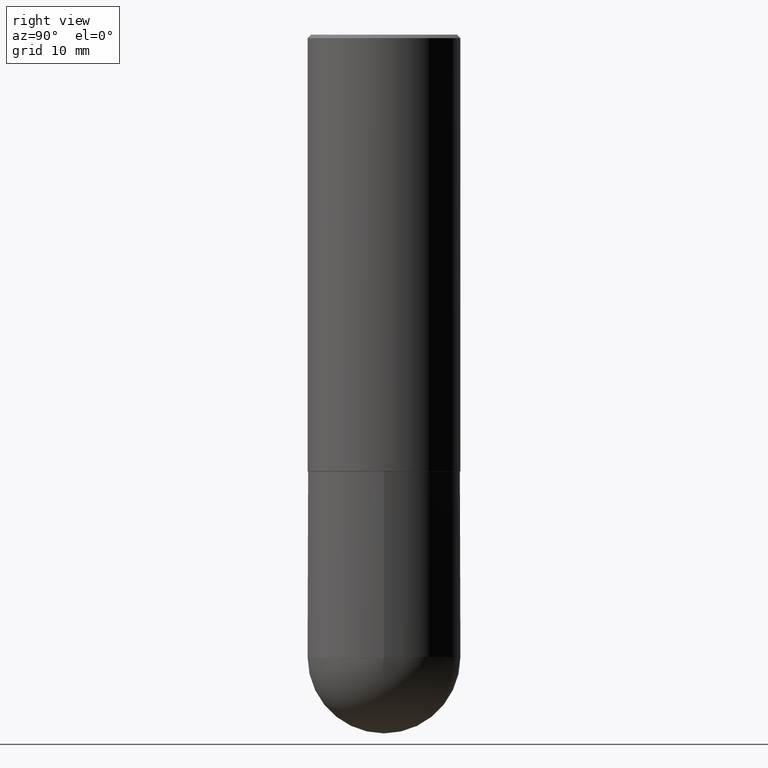
[diagram: clean part render]
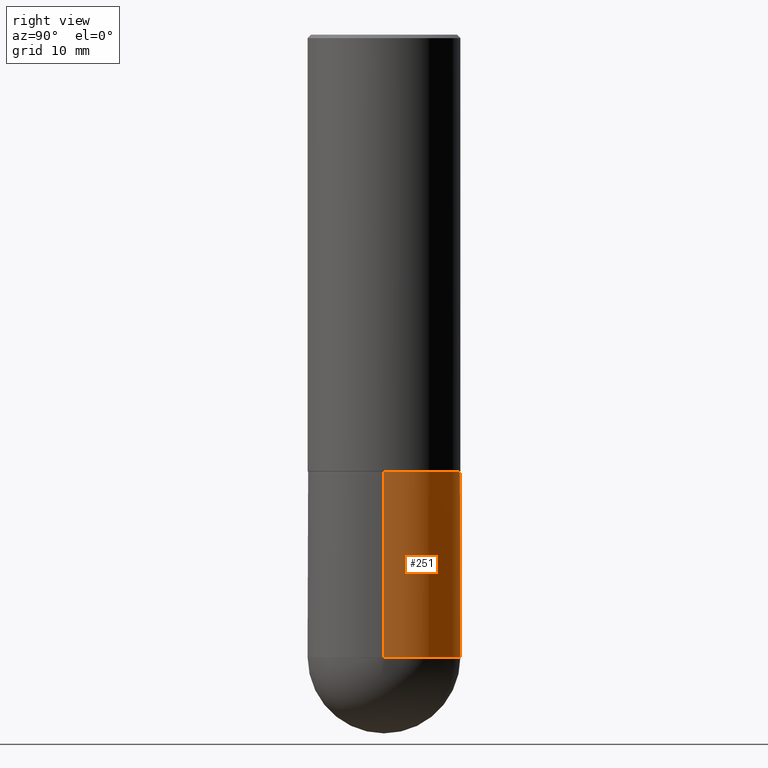
[diagram: same view with one face highlighted and labeled with its STEP entity id]
A machine part, right view. The second image highlights one B-rep face of the part: STEP entity #251.
In plain terms, the highlighted cylindrical surface (partial cylindrical patch) has radius 11.1125 mm, axis along (-0, 0, 1).
Its self-contained STEP definition (entity closure, byte-faithful):
#2 = CIRCLE ( 'NONE', #32, 0.4375000000000000000 ) ;
#16 = CARTESIAN_POINT ( 'NONE',  ( -0.4375000000000000000, -7.474928339417847141E-15, -2.500000000000000000 ) ) ;
#27 = VERTEX_POINT ( 'NONE', #283 ) ;
#29 = EDGE_CURVE ( 'NONE', #176, #338, #358, .T. ) ;
#30 = CARTESIAN_POINT ( 'NONE',  ( 8.711982622034549126E-29, -1.243840226962870597E-14, -3.562500000000000000 ) ) ;
#32 = AXIS2_PLACEMENT_3D ( 'NONE', #81, #303, #292 ) ;
#36 = DIRECTION ( 'NONE',  ( 1.000000000000000000, -6.982962677686266711E-15, 4.876176775795935232E-29 ) ) ;
#52 = ORIENTED_EDGE ( 'NONE', *, *, #359, .T. ) ;
#54 = VECTOR ( 'NONE', #232, 39.37007874015748143 ) ;
#63 = CARTESIAN_POINT ( 'NONE',  ( 8.711982622034549126E-29, -1.243840226962870597E-14, -3.562500000000000000 ) ) ;
#81 = CARTESIAN_POINT ( 'NONE',  ( 6.113672015462842613E-29, -8.728703347107864943E-15, -2.500000000000000000 ) ) ;
#110 = EDGE_CURVE ( 'NONE', #338, #27, #144, .T. ) ;
#112 = FACE_OUTER_BOUND ( 'NONE', #277, .T. ) ;
#122 = CARTESIAN_POINT ( 'NONE',  ( 3.055046171487827277E-15, 0.4374999999999873435, -3.562500000000001776 ) ) ;
#138 = CARTESIAN_POINT ( 'NONE',  ( 0.4374999999999998890, -3.055046171487740897E-15, 2.133327339410721209E-29 ) ) ;
#144 = CIRCLE ( 'NONE', #299, 0.4374999999999998890 ) ;
#146 = CARTESIAN_POINT ( 'NONE',  ( 0.4375000000000000000, -1.178374951859560505E-14, -2.500000000000000000 ) ) ;
#165 = DIRECTION ( 'NONE',  ( 1.000000000000000000, -6.982962677686265133E-15, 0.000000000000000000 ) ) ;
#176 = VERTEX_POINT ( 'NONE', #319 ) ;
#181 = CARTESIAN_POINT ( 'NONE',  ( -0.4374999999999998890, 3.108624468950437524E-15, -2.152034101986520964E-29 ) ) ;
#189 = DIRECTION ( 'NONE',  ( 1.000000000000000000, -6.982962677686265133E-15, 0.000000000000000000 ) ) ;
#208 = LINE ( 'NONE', #138, #54 ) ;
#216 = AXIS2_PLACEMENT_3D ( 'NONE', #238, #363, #36 ) ;
#220 = DIRECTION ( 'NONE',  ( -2.445468806185136597E-29, 3.491481338843145583E-15, 1.000000000000000000 ) ) ;
#226 = EDGE_CURVE ( 'NONE', #176, #241, #208, .T. ) ;
#232 = DIRECTION ( 'NONE',  ( -2.445468806185136877E-29, 3.491481338843145188E-15, 1.000000000000000000 ) ) ;
#238 = CARTESIAN_POINT ( 'NONE',  ( 0.000000000000000000, 0.000000000000000000, 0.000000000000000000 ) ) ;
#241 = VERTEX_POINT ( 'NONE', #146 ) ;
#251 = ADVANCED_FACE ( 'NONE', ( #112 ), #384, .T. ) ;
#257 = EDGE_CURVE ( 'NONE', #241, #370, #2, .T. ) ;
#273 = ORIENTED_EDGE ( 'NONE', *, *, #29, .T. ) ;
#277 = EDGE_LOOP ( 'NONE', ( #366, #52, #278, #311, #273 ) ) ;
#278 = ORIENTED_EDGE ( 'NONE', *, *, #257, .F. ) ;
#283 = CARTESIAN_POINT ( 'NONE',  ( -0.4374999999999998890, -7.474928339417851874E-15, -3.562500000000000000 ) ) ;
#292 = DIRECTION ( 'NONE',  ( 1.000000000000000000, -6.982962677686265133E-15, 0.000000000000000000 ) ) ;
#299 = AXIS2_PLACEMENT_3D ( 'NONE', #63, #318, #189 ) ;
#303 = DIRECTION ( 'NONE',  ( -2.445468806185136597E-29, 3.491481338843145583E-15, 1.000000000000000000 ) ) ;
#305 = LINE ( 'NONE', #181, #380 ) ;
#311 = ORIENTED_EDGE ( 'NONE', *, *, #226, .F. ) ;
#318 = DIRECTION ( 'NONE',  ( -2.445468806185136597E-29, 3.491481338843145583E-15, 1.000000000000000000 ) ) ;
#319 = CARTESIAN_POINT ( 'NONE',  ( 0.4374999999999998890, -1.363859897985603030E-14, -3.562500000000000000 ) ) ;
#338 = VERTEX_POINT ( 'NONE', #122 ) ;
#358 = CIRCLE ( 'NONE', #390, 0.4374999999999998890 ) ;
#359 = EDGE_CURVE ( 'NONE', #27, #370, #305, .T. ) ;
#363 = DIRECTION ( 'NONE',  ( -2.445468806185136597E-29, 3.491481338843145583E-15, 1.000000000000000000 ) ) ;
#366 = ORIENTED_EDGE ( 'NONE', *, *, #110, .T. ) ;
#370 = VERTEX_POINT ( 'NONE', #16 ) ;
#374 = DIRECTION ( 'NONE',  ( -2.445468806185136877E-29, 3.491481338843145188E-15, 1.000000000000000000 ) ) ;
#380 = VECTOR ( 'NONE', #374, 39.37007874015748143 ) ;
#384 = CYLINDRICAL_SURFACE ( 'NONE', #216, 0.4374999999999998890 ) ;
#390 = AXIS2_PLACEMENT_3D ( 'NONE', #30, #220, #165 ) ;